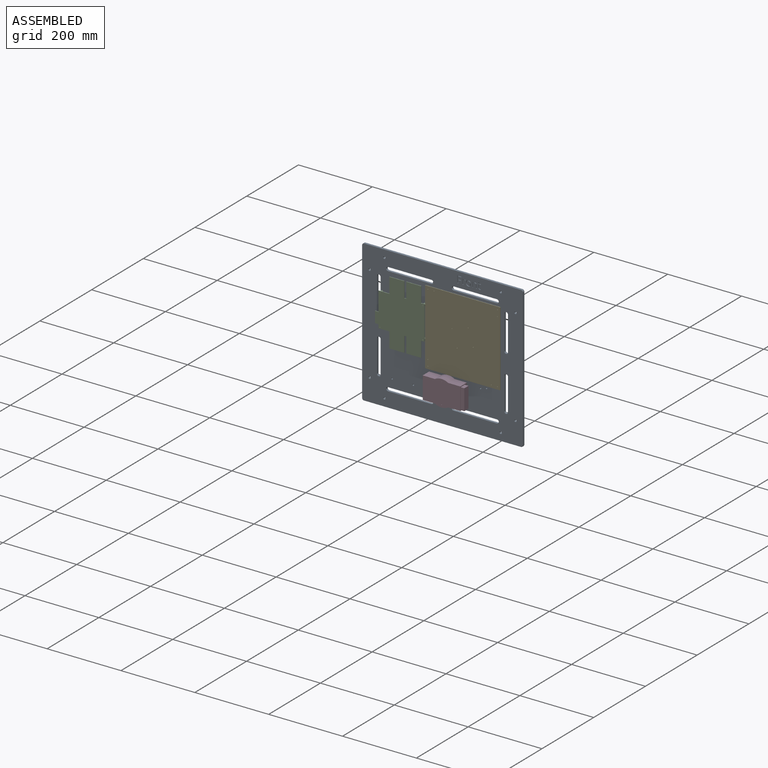
[diagram: assembled view]
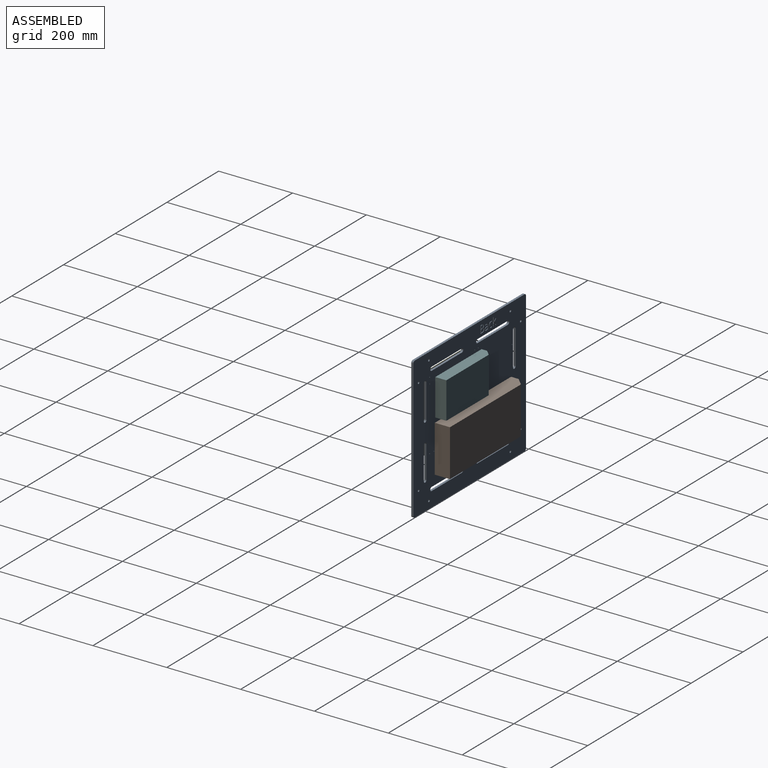
[diagram: assembled view, second angle]
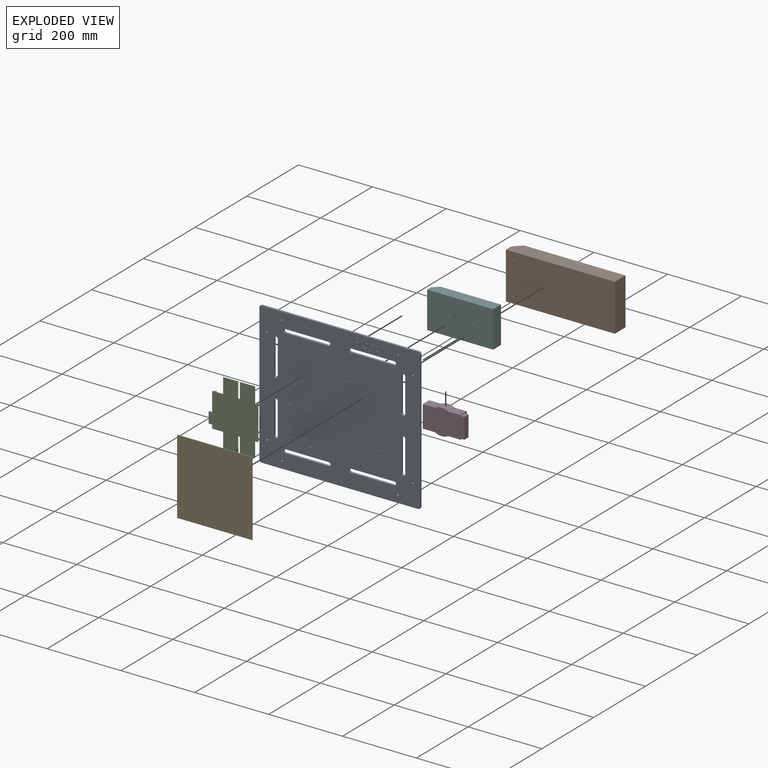
[diagram: exploded view]
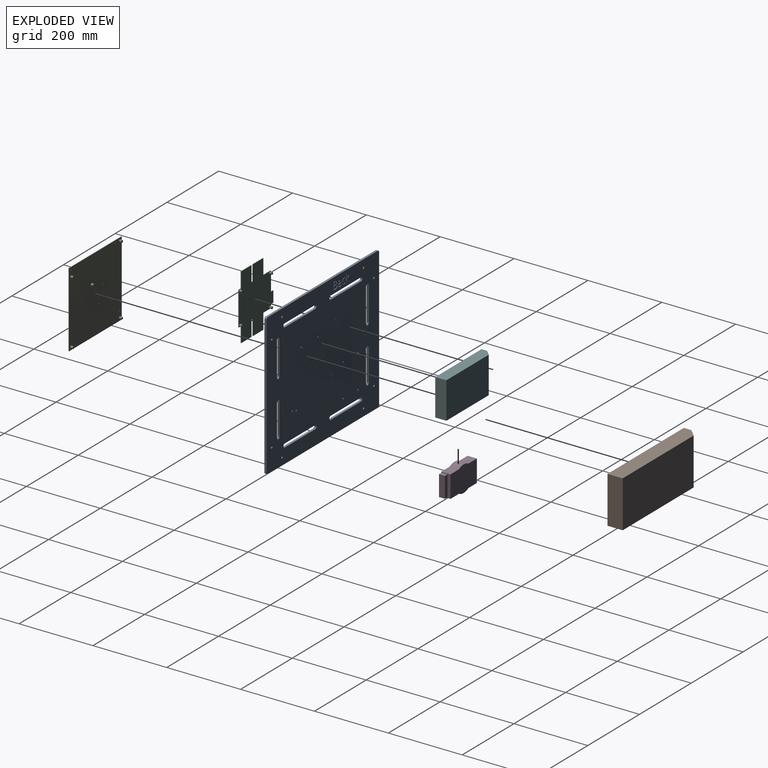
[diagram: exploded view, second angle]
ASSEMBLY  parts=6 mates=5
PART A: 247 faces, bbox 435x6x384.2 mm
  f0: plane 435x384.18mm, normal (0,1,0), area 157257mm2, adj f2,f3,f4,f5,f6,f7,f8,f9
  f1: plane 435x384.18mm, normal (0,-1,0), area 157415.6mm2, adj f2,f3,f4,f5,f6,f7,f8,f9
  f2: plane 374.18x6mm, normal (-1,0,0), area 2245mm2, adj f0,f1,f3,f49
  f3: cylinder r=5mm len=6mm, axis (0,1,0), area 47.1mm2, adj f0,f1,f2,f4
  f4: plane 425x6mm, normal (0,0,-1), area 2550mm2, adj f0,f1,f3,f5
  f5: cylinder r=5mm len=6mm, axis (0,1,0), area 47.1mm2, adj f0,f1,f4,f6
  f6: plane 374.18x6mm, normal (1,0,0), area 2245mm2, adj f0,f1,f5,f7
  f7: cylinder r=5mm len=6mm, axis (0,1,0), area 47.1mm2, adj f0,f1,f6,f8
  f8: plane 425x6mm, normal (0,0,1), area 2550mm2, adj f0,f1,f7,f49
  f9: cylinder r=5mm len=10mm, axis (0,1,0), area 94.2mm2, adj f0,f1,f10,f33
  f10: plane 92.09x6mm, normal (-1,0,0), area 552.5mm2, adj f0,f1,f9,f11
  f11: cylinder r=5mm len=10mm, axis (0,1,0), area 94.2mm2, adj f0,f1,f10,f33
  f12: cylinder r=5mm len=10mm, axis (0,1,0), area 94.2mm2, adj f0,f1,f13,f34
  f13: plane 117.5x6mm, normal (0,0,-1), area 705mm2, adj f0,f1,f12,f14
  f14: cylinder r=5mm len=10mm, axis (0,1,0), area 94.2mm2, adj f0,f1,f13,f34
  f15: cylinder r=5mm len=10mm, axis (0,1,0), area 94.2mm2, adj f0,f1,f16,f35
  f16: plane 117.5x6mm, normal (0,0,-1), area 705mm2, adj f0,f1,f15,f17
  f17: cylinder r=5mm len=10mm, axis (0,1,0), area 94.2mm2, adj f0,f1,f16,f35
  f18: cylinder r=5mm len=10mm, axis (0,1,0), area 94.2mm2, adj f0,f1,f19,f36
  f19: plane 92.09x6mm, normal (-1,0,0), area 552.5mm2, adj f0,f1,f18,f20
  f20: cylinder r=5mm len=10mm, axis (0,1,0), area 94.2mm2, adj f0,f1,f19,f36
  f21: cylinder r=5mm len=10mm, axis (0,1,0), area 94.2mm2, adj f0,f1,f22,f37
  f22: plane 86.97x6mm, normal (-1,0,0), area 521.8mm2, adj f0,f1,f21,f23
  f23: cylinder r=5mm len=10mm, axis (0,1,0), area 94.2mm2, adj f0,f1,f22,f37
  f24: cylinder r=5mm len=10mm, axis (0,1,0), area 94.2mm2, adj f0,f1,f25,f38
  f25: plane 117.5x6mm, normal (0,0,1), area 705mm2, adj f0,f1,f24,f26
  f26: cylinder r=5mm len=10mm, axis (0,1,0), area 94.2mm2, adj f0,f1,f25,f38
  f27: cylinder r=5mm len=10mm, axis (0,1,0), area 94.2mm2, adj f0,f1,f28,f39
  f28: plane 117.5x6mm, normal (0,0,1), area 705mm2, adj f0,f1,f27,f29
  f29: cylinder r=5mm len=10mm, axis (0,1,0), area 94.2mm2, adj f0,f1,f28,f39
  f30: cylinder r=5mm len=10mm, axis (0,1,0), area 94.2mm2, adj f0,f1,f31,f40
  f31: plane 86.97x6mm, normal (-1,0,0), area 521.8mm2, adj f0,f1,f30,f32
  f32: cylinder r=5mm len=10mm, axis (0,1,0), area 94.2mm2, adj f0,f1,f31,f40
  f33: plane 92.09x6mm, normal (1,0,0), area 552.5mm2, adj f0,f1,f9,f11
  f34: plane 117.5x6mm, normal (0,0,1), area 705mm2, adj f0,f1,f12,f14
  f35: plane 117.5x6mm, normal (0,0,1), area 705mm2, adj f0,f1,f15,f17
  f36: plane 92.09x6mm, normal (1,0,0), area 552.5mm2, adj f0,f1,f18,f20
  f37: plane 86.97x6mm, normal (1,0,0), area 521.8mm2, adj f0,f1,f21,f23
  f38: plane 117.5x6mm, normal (0,0,-1), area 705mm2, adj f0,f1,f24,f26
  f39: plane 117.5x6mm, normal (0,0,-1), area 705mm2, adj f0,f1,f27,f29
  f40: plane 86.97x6mm, normal (1,0,0), area 521.8mm2, adj f0,f1,f30,f32
  f41: cylinder r=3mm len=6mm, axis (0,1,0), area 113.1mm2, adj f0,f1
  f42: cylinder r=3mm len=6mm, axis (0,1,0), area 113.1mm2, adj f0,f1
  f43: cylinder r=3mm len=6mm, axis (0,1,0), area 113.1mm2, adj f0,f1
  f44: cylinder r=3mm len=6mm, axis (0,1,0), area 113.1mm2, adj f0,f1
  f45: cylinder r=3mm len=6mm, axis (0,1,0), area 113.1mm2, adj f0,f1
  f46: cylinder r=3mm len=6mm, axis (0,1,0), area 113.1mm2, adj f0,f1
  f47: cylinder r=3mm len=6mm, axis (0,1,0), area 113.1mm2, adj f0,f1
  f48: cylinder r=3mm len=6mm, axis (0,1,0), area 113.1mm2, adj f0,f1
  f49: cylinder r=5mm len=6mm, axis (0,1,0), area 47.1mm2, adj f0,f1,f2,f8
  f50: extruded ~2x1.7mm, area 3.4mm2, adj f1,f51,f62,f63
  f51: extruded ~2.46x2mm, area 5.2mm2, adj f1,f50,f52,f63
  f52: extruded ~2.15x2mm, area 5.8mm2, adj f1,f51,f53,f63
  f53: plane 2x0.1mm, normal (0,0,-1), area 0.2mm2, adj f1,f52,f54,f63
  f54: plane 2.64x2mm, normal (-1,0,-0.09), area 5.3mm2, adj f1,f53,f55,f63
  f55: plane 2x1.78mm, normal (0,0,-1), area 3.6mm2, adj f1,f54,f56,f63
  f56: plane 14.26x2mm, normal (1,0,0), area 28.5mm2, adj f1,f55,f57,f63
  f57: plane 2.16x2mm, normal (0,0,1), area 4.3mm2, adj f1,f56,f58,f63
  f58: plane 7.65x2mm, normal (-1,0,0), area 15.3mm2, adj f1,f57,f59,f63
  f59: extruded ~3.5x2mm, area 7.6mm2, adj f1,f58,f60,f63
  f60: extruded ~2.96x2mm, area 6.8mm2, adj f1,f59,f61,f63
  f61: extruded ~2x1.56mm, area 3.2mm2, adj f1,f60,f62,f63
  f62: plane 2x2mm, normal (-0.99,0,0.15), area 4mm2, adj f1,f50,f61,f63
  f63: plane 14.52x8.21mm, normal (0,-1,0), area 42.4mm2, adj f50,f51,f52,f53,f54,f55,f56,f57
  f64: plane 9.23x2mm, normal (1,0,0), area 18.5mm2, adj f1,f65,f80,f81
  f65: plane 2.16x2mm, normal (0,0,1), area 4.3mm2, adj f1,f64,f66,f81
  f66: plane 9.3x2mm, normal (-1,0,0), area 18.6mm2, adj f1,f65,f67,f81
  f67: extruded ~3.98x2mm, area 8.6mm2, adj f1,f66,f68,f81
  f68: extruded ~3.88x2mm, area 8.3mm2, adj f1,f67,f69,f81
  f69: extruded ~2.67x2mm, area 5.5mm2, adj f1,f68,f70,f81
  f70: extruded ~2x1.86mm, area 5mm2, adj f1,f69,f71,f81
  f71: plane 2x0.1mm, normal (0,0,-1), area 0.2mm2, adj f1,f70,f72,f81
  f72: plane 2x1.95mm, normal (-0.98,0,-0.18), area 4mm2, adj f1,f71,f73,f81
  f73: plane 2x1.76mm, normal (0,0,-1), area 3.5mm2, adj f1,f72,f74,f81
  f74: plane 14.26x2mm, normal (1,0,0), area 28.5mm2, adj f1,f73,f75,f81
  f75: plane 2.16x2mm, normal (0,0,1), area 4.3mm2, adj f1,f74,f76,f81
  f76: plane 7.48x2mm, normal (-1,0,0), area 15mm2, adj f1,f75,f77,f81
  f77: extruded ~3.99x2mm, area 8.4mm2, adj f1,f76,f78,f81
  f78: extruded ~3.28x2mm, area 7.2mm2, adj f1,f77,f79,f81
  f79: extruded ~2.49x2mm, area 5.4mm2, adj f1,f78,f80,f81
  f80: extruded ~2.6x2mm, area 5.6mm2, adj f1,f64,f79,f81
  f81: plane 14.52x11.92mm, normal (0,-1,0), area 73.7mm2, adj f64,f65,f66,f67,f68,f69,f70,f71
  f82: extruded ~2x1.11mm, area 2.2mm2, adj f1,f83,f100,f101
  f83: extruded ~2x1.68mm, area 3.7mm2, adj f1,f82,f84,f101
  f84: extruded ~2x1.98mm, area 4.2mm2, adj f1,f83,f85,f101
  f85: plane 8.39x2mm, normal (-1,0,0), area 16.8mm2, adj f1,f84,f86,f101
  f86: plane 4.14x2mm, normal (0,0,1), area 8.3mm2, adj f1,f85,f87,f101
  f87: plane 2x1.68mm, normal (-1,0,0), area 3.4mm2, adj f1,f86,f88,f101
  f88: plane 4.14x2mm, normal (0,0,-1), area 8.3mm2, adj f1,f87,f89,f101
  f89: plane 3.31x2mm, normal (-1,0,0), area 6.6mm2, adj f1,f88,f90,f101
  f90: plane 2x1.25mm, normal (0,0,-1), area 2.5mm2, adj f1,f89,f91,f101
  f91: plane 3.04x2mm, normal (0.96,0,-0.29), area 6.4mm2, adj f1,f90,f92,f101
  f92: plane 2.04x2mm, normal (0.4,0,-0.92), area 4.5mm2, adj f1,f91,f93,f101
  f93: plane 2x1.04mm, normal (1,0,0), area 2.1mm2, adj f1,f92,f94,f101
  f94: plane 2.04x2mm, normal (0,0,1), area 4.1mm2, adj f1,f93,f95,f101
  f95: plane 8.48x2mm, normal (1,0,0), area 17mm2, adj f1,f94,f96,f101
  f96: extruded ~4.36x4.13mm, area 13.8mm2, adj f1,f95,f97,f101
  f97: extruded ~2x1.23mm, area 2.5mm2, adj f1,f96,f98,f101
  f98: extruded ~2x1.03mm, area 2.1mm2, adj f1,f97,f99,f101
  f99: plane 2x1.65mm, normal (-1,0,0), area 3.3mm2, adj f1,f98,f100,f101
  f100: extruded ~2x0.85mm, area 1.7mm2, adj f1,f82,f99,f101
  f101: plane 17.83x8.44mm, normal (0,-1,0), area 52.6mm2, adj f82,f83,f84,f85,f86,f87,f88,f89
  f102: extruded ~4.17x2mm, area 8.8mm2, adj f103,f118,f119,f131
  f103: extruded ~4.15x2mm, area 8.7mm2, adj f102,f104,f119,f131
  f104: extruded ~3.2x2mm, area 7.2mm2, adj f103,f105,f119,f131
  f105: extruded ~3.25x2mm, area 7.4mm2, adj f104,f106,f119,f131
  f106: extruded ~4.13x2mm, area 8.7mm2, adj f105,f107,f119,f131
  f107: extruded ~4.17x2mm, area 8.8mm2, adj f106,f108,f119,f131
  f108: extruded ~3.22x2mm, area 7.3mm2, adj f107,f118,f119,f131
  f109: extruded ~5.45x2mm, area 11.7mm2, adj f1,f110,f117,f119
  f110: extruded ~5.39x2mm, area 11.6mm2, adj f1,f109,f111,f119
  f111: extruded ~4.75x2mm, area 10.6mm2, adj f1,f110,f112,f119
  f112: extruded ~4.84x2mm, area 10.8mm2, adj f1,f111,f113,f119
  f113: extruded ~5.43x2mm, area 11.7mm2, adj f1,f112,f114,f119
  f114: extruded ~3.93x2mm, area 8.1mm2, adj f1,f113,f115,f119
  f115: extruded ~2.58x2.29mm, area 7mm2, adj f1,f114,f116,f119
  f116: extruded ~3.4x2mm, area 7.1mm2, adj f1,f115,f117,f119
  f117: extruded ~4.85x2mm, area 10.8mm2, adj f1,f109,f116,f119
  f118: extruded ~3.21x2mm, area 7.3mm2, adj f102,f108,f119,f131
  f119: plane 14.78x13.1mm, normal (0,-1,0), area 78.1mm2, adj f102,f103,f104,f105,f106,f107,f108,f109
  f120: plane 2.21x2mm, normal (0,0,1), area 4.4mm2, adj f1,f121,f129,f130
  f121: plane 8.13x2mm, normal (-1,0,0), area 16.3mm2, adj f1,f120,f122,f130
  f122: plane 7.89x2mm, normal (0,0,1), area 15.8mm2, adj f1,f121,f123,f130
  f123: plane 2x1.97mm, normal (-1,0,0), area 3.9mm2, adj f1,f122,f124,f130
  f124: plane 7.89x2mm, normal (0,0,-1), area 15.8mm2, adj f1,f123,f125,f130
  f125: plane 6.96x2mm, normal (-1,0,0), area 13.9mm2, adj f1,f124,f126,f130
  f126: plane 8.39x2mm, normal (0,0,1), area 16.8mm2, adj f1,f125,f127,f130
  f127: plane 2x1.97mm, normal (-1,0,0), area 3.9mm2, adj f1,f126,f128,f130
  f128: plane 10.6x2mm, normal (0,0,-1), area 21.2mm2, adj f1,f127,f129,f130
  f129: plane 19.02x2mm, normal (1,0,0), area 38mm2, adj f1,f120,f128,f130
  f130: plane 19.02x10.6mm, normal (0,-1,0), area 74mm2, adj f120,f121,f122,f123,f124,f125,f126,f127
  f131: plane 11.14x8.63mm, normal (0,-1,0), area 79.7mm2, adj f102,f103,f104,f105,f106,f107,f108,f118
  f132: extruded ~5.22x2.08mm, area 11.6mm2, adj f0,f133,f146,f147
  f133: extruded ~3.92x2mm, area 8.1mm2, adj f0,f132,f134,f147
  f134: plane 2.08x2mm, normal (1,0,0), area 4.2mm2, adj f0,f133,f135,f147
  f135: extruded ~3.98x2mm, area 8.2mm2, adj f0,f134,f136,f147
  f136: extruded ~3.42x2mm, area 7.8mm2, adj f0,f135,f137,f147
  f137: extruded ~4.39x2mm, area 9.2mm2, adj f0,f136,f138,f147
  f138: extruded ~6.03x4.73mm, area 17.5mm2, adj f0,f137,f139,f147
  f139: extruded ~2x1.63mm, area 3.3mm2, adj f0,f138,f140,f147
  f140: extruded ~2x1.7mm, area 3.6mm2, adj f0,f139,f141,f147
  f141: plane 2x1.99mm, normal (0.94,0,0.34), area 4.2mm2, adj f0,f140,f142,f147
  f142: extruded ~2x1.75mm, area 3.7mm2, adj f0,f141,f143,f147
  f143: extruded ~2.24x2mm, area 4.5mm2, adj f0,f142,f144,f147
  f144: extruded ~5.35x2.13mm, area 11.9mm2, adj f0,f143,f145,f147
  f145: extruded ~6.02x2mm, area 12.9mm2, adj f0,f144,f146,f147
  f146: extruded ~5.88x2mm, area 12.6mm2, adj f0,f132,f145,f147
  f147: plane 16.1x11.22mm, normal (0,1,0), area 63.9mm2, adj f132,f133,f134,f135,f136,f137,f138,f139
  f148: extruded ~2.27x2mm, area 5.9mm2, adj f0,f149,f162,f163
  f149: plane 2x0.11mm, normal (0,0,-1), area 0.2mm2, adj f0,f148,f150,f163
  f150: extruded ~2.41x2mm, area 4.8mm2, adj f0,f149,f151,f163
  f151: plane 11.69x2mm, normal (1,0,0), area 23.4mm2, adj f0,f150,f152,f163
  f152: plane 2.33x2mm, normal (0,0,-1), area 4.7mm2, adj f0,f151,f153,f163
  f153: plane 22.04x2mm, normal (-1,0,0), area 44.1mm2, adj f0,f152,f154,f163
  f154: plane 2.33x2mm, normal (0,0,1), area 4.7mm2, adj f0,f153,f155,f163
  f155: plane 5.81x2mm, normal (1,0,0), area 11.6mm2, adj f0,f154,f156,f163
  f156: plane 2x1.77mm, normal (0.65,0,0.76), area 4.7mm2, adj f0,f155,f157,f163
  f157: plane 7.34x5.49mm, normal (-0.8,0,0.6), area 18.3mm2, adj f0,f156,f158,f163
  f158: plane 2.85x2mm, normal (0,0,1), area 5.7mm2, adj f0,f157,f159,f163
  f159: plane 8.91x6.73mm, normal (0.8,0,-0.6), area 22.3mm2, adj f0,f158,f160,f163
  f160: plane 6.61x6.29mm, normal (0.72,0,0.69), area 18.3mm2, adj f0,f159,f161,f163
  f161: plane 2.79x2mm, normal (0,0,-1), area 5.6mm2, adj f0,f160,f162,f163
  f162: plane 5.31x5.01mm, normal (-0.73,0,-0.69), area 14.6mm2, adj f0,f148,f161,f163
  f163: plane 22.04x12.43mm, normal (0,1,0), area 97.3mm2, adj f148,f149,f150,f151,f152,f153,f154,f155
  f164: extruded ~3.45x2mm, area 7.5mm2, adj f165,f190,f191,f219
  f165: extruded ~2.16x2mm, area 4.6mm2, adj f164,f166,f191,f219
  f166: extruded ~2x1.94mm, area 4.3mm2, adj f165,f167,f191,f219
  f167: extruded ~2.4x2mm, area 5.7mm2, adj f166,f168,f191,f219
  f168: extruded ~4.04x2mm, area 8.4mm2, adj f167,f169,f191,f219
  f169: plane 2.35x2mm, normal (0.04,0,1), area 4.7mm2, adj f168,f170,f191,f219
  f170: plane 2x1.4mm, normal (-1,0,0), area 2.8mm2, adj f169,f190,f191,f219
  f171: plane 2.21x2mm, normal (-0.98,0,0.21), area 4.5mm2, adj f0,f172,f189,f191
  f172: plane 2x1.75mm, normal (0,0,1), area 3.5mm2, adj f0,f171,f173,f191
  f173: plane 10.6x2mm, normal (1,0,0), area 21.2mm2, adj f0,f172,f174,f191
  f174: extruded ~3.95x2mm, area 8.6mm2, adj f0,f173,f175,f191
  f175: extruded ~4.11x2mm, area 8.8mm2, adj f0,f174,f176,f191
  f176: extruded ~2.74x2mm, area 5.5mm2, adj f0,f175,f177,f191
  f177: extruded ~2.51x2mm, area 5.4mm2, adj f0,f176,f178,f191
  f178: plane 2x1.8mm, normal (-0.93,0,0.37), area 3.9mm2, adj f0,f177,f179,f191
  f179: extruded ~4.39x2mm, area 9.2mm2, adj f0,f178,f180,f191
  f180: extruded ~2.52x2mm, area 5.5mm2, adj f0,f179,f181,f191
  f181: extruded ~2.7x2mm, area 5.7mm2, adj f0,f180,f182,f191
  f182: plane 2x0.97mm, normal (-1,0,0), area 1.9mm2, adj f0,f181,f183,f191
  f183: plane 2.63x2mm, normal (-0.03,0,-1), area 5.3mm2, adj f0,f182,f184,f191
  f184: extruded ~7.52x4.93mm, area 20.2mm2, adj f0,f183,f185,f191
  f185: extruded ~3.39x2mm, area 7.5mm2, adj f0,f184,f186,f191
  f186: extruded ~3.62x2mm, area 7.8mm2, adj f0,f185,f187,f191
  f187: extruded ~2.89x2mm, area 5.9mm2, adj f0,f186,f188,f191
  f188: extruded ~2.31x2mm, area 6.1mm2, adj f0,f187,f189,f191
  f189: plane 2x0.11mm, normal (0,0,1), area 0.2mm2, adj f0,f171,f188,f191
  f190: extruded ~3.37x2mm, area 7.4mm2, adj f164,f170,f191,f219
  f191: plane 16.07x12.45mm, normal (0,1,0), area 94.4mm2, adj f164,f165,f166,f167,f168,f169,f170,f171
  f192: plane 7.75x2mm, normal (1,0,0), area 15.5mm2, adj f193,f216,f217,f220
  f193: plane 4.13x2mm, normal (0,0,1), area 8.3mm2, adj f192,f194,f217,f220
  f194: extruded ~3.94x2mm, area 8.2mm2, adj f193,f195,f217,f220
  f195: extruded ~2.83x2mm, area 6.5mm2, adj f194,f196,f217,f220
  f196: extruded ~3.04x2mm, area 6.8mm2, adj f195,f197,f217,f220
  f197: extruded ~3.77x2mm, area 7.9mm2, adj f196,f216,f217,f220
  f198: plane 3.97x2mm, normal (0,0,-1), area 7.9mm2, adj f199,f214,f217,f218
  f199: plane 6.78x2mm, normal (1,0,0), area 13.6mm2, adj f198,f200,f217,f218
  f200: plane 3.55x2mm, normal (0,0,1), area 7.1mm2, adj f199,f201,f217,f218
  f201: extruded ~3.97x2mm, area 8.2mm2, adj f200,f202,f217,f218
  f202: extruded ~2.52x2mm, area 5.9mm2, adj f201,f203,f217,f218
  f203: extruded ~2.7x2mm, area 6.1mm2, adj f202,f214,f217,f218
  f204: plane 5.85x2mm, normal (0,0,-1), area 11.7mm2, adj f0,f205,f215,f217
  f205: plane 20.71x2mm, normal (-1,0,0), area 41.4mm2, adj f0,f204,f206,f217
  f206: plane 7.23x2mm, normal (0,0,1), area 14.5mm2, adj f0,f205,f207,f217
  f207: extruded ~5.25x2mm, area 11.2mm2, adj f0,f206,f208,f217
  f208: extruded ~4.33x2mm, area 9.8mm2, adj f0,f207,f209,f217
  f209: extruded ~4.96x4.72mm, area 15.2mm2, adj f0,f208,f210,f217
  f210: plane 2x0.14mm, normal (1,0,0), area 0.3mm2, adj f0,f209,f211,f217
  f211: extruded ~3x2mm, area 6.9mm2, adj f0,f210,f212,f217
  f212: extruded ~3.04x2mm, area 6.6mm2, adj f0,f211,f213,f217
  f213: extruded ~3.89x2mm, area 9mm2, adj f0,f212,f215,f217
  f214: extruded ~3.67x2mm, area 7.6mm2, adj f198,f203,f217,f218
  f215: extruded ~5.96x2mm, area 12.3mm2, adj f0,f204,f213,f217
  f216: plane 4.32x2mm, normal (0,0,-1), area 8.6mm2, adj f192,f197,f217,f220
  f217: plane 20.71x14.35mm, normal (0,1,0), area 146.3mm2, adj f192,f193,f194,f195,f196,f197,f198,f199
  f218: plane 8.76x6.78mm, normal (0,1,0), area 54.3mm2, adj f198,f199,f200,f201,f202,f203,f214
  f219: plane 7.63x5.97mm, normal (0,1,0), area 36.8mm2, adj f164,f165,f166,f167,f168,f169,f170,f190
  f220: plane 9.37x7.75mm, normal (0,1,0), area 66.1mm2, adj f192,f193,f194,f195,f196,f197,f216
  f221: cylinder r=0.9mm len=6mm, axis (0,-1,0), area 33.9mm2, adj f0,f1
  f222: cylinder r=0.9mm len=6mm, axis (0,-1,0), area 33.9mm2, adj f0,f1
  f223: cylinder r=0.9mm len=6mm, axis (0,-1,0), area 33.9mm2, adj f0,f1
  f224: cylinder r=0.9mm len=6mm, axis (0,-1,0), area 33.9mm2, adj f0,f1
  f225: cylinder r=0.9mm len=6mm, axis (0,-1,0), area 33.9mm2, adj f0,f1
  f226: cylinder r=0.9mm len=6mm, axis (0,-1,0), area 33.9mm2, adj f0,f1
  f227: cylinder r=0.9mm len=6mm, axis (0,-1,0), area 33.9mm2, adj f0,f1
  f228: cylinder r=0.9mm len=6mm, axis (0,-1,0), area 33.9mm2, adj f0,f1
  f229: cylinder r=0.9mm len=6mm, axis (0,-1,0), area 33.9mm2, adj f0,f1
  f230: cylinder r=0.9mm len=6mm, axis (0,-1,0), area 33.9mm2, adj f0,f1
  f231: cylinder r=0.9mm len=6mm, axis (0,-1,0), area 33.9mm2, adj f0,f1
  f232: cylinder r=0.9mm len=6mm, axis (0,-1,0), area 33.9mm2, adj f0,f1
  f233: cylinder r=0.9mm len=6mm, axis (0,-1,0), area 33.9mm2, adj f0,f1
  f234: cylinder r=0.9mm len=6mm, axis (0,-1,0), area 33.9mm2, adj f0,f1
  f235: cylinder r=0.9mm len=6mm, axis (0,-1,0), area 33.9mm2, adj f0,f1
  f236: cylinder r=0.9mm len=6mm, axis (0,-1,0), area 33.9mm2, adj f0,f1
  f237: cylinder r=0.5mm len=6mm, axis (0,-1,0), area 18.8mm2, adj f0,f1
  f238: cylinder r=0.5mm len=6mm, axis (0,-1,0), area 18.8mm2, adj f0,f1
  f239: cylinder r=2mm len=6mm, axis (0,-1,0), area 75.4mm2, adj f0,f1
  f240: cylinder r=2mm len=6mm, axis (0,-1,0), area 75.4mm2, adj f0,f1
  f241: cylinder r=2mm len=6mm, axis (0,-1,0), area 75.4mm2, adj f0,f1
  f242: cylinder r=2mm len=6mm, axis (0,-1,0), area 75.4mm2, adj f0,f1
  f243: cylinder r=2mm len=6mm, axis (0,-1,0), area 75.4mm2, adj f0,f1
  f244: cylinder r=2mm len=6mm, axis (0,-1,0), area 75.4mm2, adj f0,f1
  f245: cylinder r=2mm len=6mm, axis (0,-1,0), area 75.4mm2, adj f0,f1
  f246: cylinder r=2mm len=6mm, axis (0,-1,0), area 75.4mm2, adj f0,f1
PART B: 13 faces, bbox 295x127x41 mm
  f0: plane 274.5x127mm, normal (0,0,1), area 34861.5mm2, adj f1,f3,f4,f6
  f1: plane 295x41mm, normal (0,1,0), area 11884.9mm2, adj f0,f2,f4,f5,f6
  f2: plane 127x20.5mm, normal (-1,0,0), area 2603.5mm2, adj f1,f3,f5,f6
  f3: plane 295x41mm, normal (0,-1,0), area 11884.9mm2, adj f0,f2,f4,f5,f6
  f4: plane 127x41mm, normal (1,0,0), area 5207mm2, adj f0,f1,f3,f5
  f5: plane 295x127mm, normal (0,0,-1), area 37427.3mm2, adj f1,f2,f3,f4,f7,f9,f11
  f6: plane 127x20.5mm, normal (-0.71,0,0.71), area 3681.9mm2, adj f0,f1,f2,f3
  f7: cylinder r=2mm len=4mm, axis (0,0,-1), area 50.3mm2, adj f5,f8
  f8: plane 4x4mm, normal (0,0,-1), area 12.6mm2, adj f7
  f9: cylinder r=2mm len=4mm, axis (0,0,-1), area 50.3mm2, adj f5,f10
  f10: plane 4x4mm, normal (0,0,-1), area 12.6mm2, adj f9
  f11: cylinder r=2mm len=4mm, axis (0,0,-1), area 50.3mm2, adj f5,f12
  f12: plane 4x4mm, normal (0,0,-1), area 12.6mm2, adj f11
PART C: 42 faces, bbox 175.5x133.5x8 mm
  f0: plane 30x1.65mm, normal (0,1,0), area 49.5mm2, adj f1,f26,f28,f29
  f1: plane 9.5x1.65mm, normal (-1,0,0), area 15.7mm2, adj f0,f2,f28,f29
  f2: plane 10x1.65mm, normal (0,1,0), area 16.5mm2, adj f1,f3,f28,f29
  f3: plane 29.5x1.65mm, normal (-1,0,0), area 48.7mm2, adj f2,f4,f28,f29
  f4: plane 41.75x1.65mm, normal (0,1,0), area 68.9mm2, adj f3,f5,f28,f29
  f5: plane 40x1.65mm, normal (-1,0,0), area 66mm2, adj f4,f6,f28,f29
  f6: plane 41.75x1.65mm, normal (0,-1,0), area 68.9mm2, adj f5,f7,f28,f29
  f7: plane 5.5x1.65mm, normal (-1,0,0), area 9.1mm2, adj f6,f8,f28,f29
  f8: plane 41.75x1.65mm, normal (0,1,0), area 68.9mm2, adj f7,f9,f28,f29
  f9: plane 40x1.65mm, normal (-1,0,0), area 66mm2, adj f8,f10,f28,f29
  f10: plane 41.75x1.65mm, normal (0,-1,0), area 68.9mm2, adj f9,f11,f28,f29
  f11: plane 9x1.65mm, normal (-1,0,0), area 14.9mm2, adj f10,f12,f28,f29
  f12: plane 92x1.65mm, normal (0,-1,0), area 151.8mm2, adj f11,f13,f28,f29
  f13: plane 9x1.65mm, normal (1,0,0), area 14.9mm2, adj f12,f14,f28,f29
  f14: plane 41.75x1.65mm, normal (0,-1,0), area 68.9mm2, adj f13,f15,f28,f29
  f15: plane 40x1.65mm, normal (1,0,0), area 66mm2, adj f14,f16,f28,f29
  f16: plane 41.75x1.65mm, normal (0,1,0), area 68.9mm2, adj f15,f17,f28,f29
  f17: plane 5.5x1.65mm, normal (1,0,0), area 9.1mm2, adj f16,f18,f28,f29
  f18: plane 41.75x1.65mm, normal (0,-1,0), area 68.9mm2, adj f17,f19,f28,f29
  f19: plane 40x1.65mm, normal (1,0,0), area 66mm2, adj f18,f20,f28,f29
  f20: plane 41.75x1.65mm, normal (0,1,0), area 68.9mm2, adj f19,f21,f28,f29
  f21: plane 29.5x1.65mm, normal (1,0,0), area 48.7mm2, adj f20,f22,f28,f29
  f22: plane 52x1.65mm, normal (0,1,0), area 85.8mm2, adj f21,f26,f28,f29
  f23: cylinder r=1mm len=2mm, axis (0,0,1), area 10.4mm2, adj f29,f32
  f24: cylinder r=1mm len=2mm, axis (0,0,1), area 10.4mm2, adj f29,f38
  f25: cylinder r=1mm len=2mm, axis (0,0,1), area 10.4mm2, adj f29,f41
  f26: plane 9.5x1.65mm, normal (1,0,0), area 15.7mm2, adj f0,f22,f28,f29
  f27: cylinder r=1mm len=2mm, axis (0,0,1), area 10.4mm2, adj f29,f35
  f28: plane 175.5x133.5mm, normal (0,0,-1), area 18246.3mm2, adj f0,f1,f2,f3,f4,f5,f6,f7
  f29: plane 175.5x133.5mm, normal (0,0,1), area 18360.4mm2, adj f0,f1,f2,f3,f4,f5,f6,f7
  f30: plane 6.35x6.35mm, normal (0,0,-1), area 31.7mm2, adj f31
  f31: cylinder r=3.17mm len=6.35mm, axis (0,0,1), area 126.7mm2, adj f28,f30
  f32: plane 2x2mm, normal (0,0,1), area 3.1mm2, adj f23
  f33: plane 6.35x6.35mm, normal (0,0,-1), area 31.7mm2, adj f34
  f34: cylinder r=3.17mm len=6.35mm, axis (0,0,1), area 126.7mm2, adj f28,f33
  f35: plane 2x2mm, normal (0,0,1), area 3.1mm2, adj f27
  f36: plane 6.35x6.35mm, normal (0,0,-1), area 31.7mm2, adj f37
  f37: cylinder r=3.17mm len=6.35mm, axis (0,0,1), area 126.7mm2, adj f28,f36
  f38: plane 2x2mm, normal (0,0,1), area 3.1mm2, adj f24
  f39: plane 6.35x6.35mm, normal (0,0,-1), area 31.7mm2, adj f40
  f40: cylinder r=3.17mm len=6.35mm, axis (0,0,1), area 126.7mm2, adj f28,f39
  f41: plane 2x2mm, normal (0,0,1), area 3.1mm2, adj f25
PART D: 17 faces, bbox 70x112x25 mm
  f0: plane 16x10mm, normal (1,0,0), area 160mm2, adj f2,f5,f15,f16
  f1: plane 16x10mm, normal (-1,0,0), area 160mm2, adj f2,f5,f15,f16
  f2: plane 56x16mm, normal (0,-1,0), area 896mm2, adj f0,f1,f15,f16
  f3: plane 102x70mm, normal (0,0,1), area 6360.5mm2, adj f5,f6,f7,f8,f9,f10,f11,f12
  f4: plane 102x70mm, normal (0,0,-1), area 6360.5mm2, adj f5,f6,f7,f8,f9,f10,f11,f12
  f5: plane 60x25mm, normal (0,-1,0), area 604mm2, adj f0,f1,f3,f4,f6,f12,f15,f16
  f6: plane 32.97x25mm, normal (1,0,0), area 824.3mm2, adj f3,f4,f5,f7
  f7: cylinder r=35mm len=36.06mm, axis (0,0,-1), area 946.9mm2, adj f3,f4,f6,f8
  f8: plane 32.97x25mm, normal (1,0,0), area 824.3mm2, adj f3,f4,f7,f9
  f9: plane 60x25mm, normal (0,1,0), area 1500mm2, adj f3,f4,f8,f10
  f10: plane 32.97x25mm, normal (-1,0,0), area 824.3mm2, adj f3,f4,f9,f11
  f11: cylinder r=35mm len=36.06mm, axis (0,0,-1), area 946.9mm2, adj f3,f4,f10,f12
  f12: plane 32.97x25mm, normal (-1,0,0), area 824.3mm2, adj f3,f4,f5,f11
  f13: cylinder r=0.75mm len=25mm, axis (0,0,-1), area 117.8mm2, adj f3,f4
  f14: cylinder r=0.75mm len=25mm, axis (0,0,-1), area 117.8mm2, adj f3,f4
  f15: plane 56x10mm, normal (0,0,-1), area 560mm2, adj f0,f1,f2,f5
  f16: plane 56x10mm, normal (0,0,1), area 560mm2, adj f0,f1,f2,f5
PART E: 33 faces, bbox 203.3x203.3x8 mm
  f0: plane 203.25x1.65mm, normal (0,1,0), area 335.4mm2, adj f1,f15,f16,f17
  f1: plane 203.25x1.65mm, normal (-1,0,0), area 335.4mm2, adj f0,f2,f16,f17
  f2: plane 203.25x1.65mm, normal (0,-1,0), area 335.4mm2, adj f1,f15,f16,f17
  f3: cylinder r=1mm len=2mm, axis (0,0,1), area 10.4mm2, adj f17,f26
  f4: cylinder r=1mm len=2mm, axis (0,0,1), area 10.4mm2, adj f17,f23
  f5: cylinder r=1mm len=2mm, axis (0,0,1), area 10.4mm2, adj f17,f20
  f6: cylinder r=1mm len=2mm, axis (0,0,1), area 10.4mm2, adj f16,f17
  f7: cylinder r=1mm len=2mm, axis (0,0,1), area 10.4mm2, adj f17,f29
  f8: cylinder r=1mm len=2mm, axis (0,0,1), area 10.4mm2, adj f16,f17
  f9: cylinder r=1mm len=2mm, axis (0,0,1), area 10.4mm2, adj f16,f17
  f10: cylinder r=1mm len=2mm, axis (0,0,1), area 10.4mm2, adj f16,f17
  f11: cylinder r=1mm len=2mm, axis (0,0,1), area 10.4mm2, adj f17,f32
  f12: cylinder r=1mm len=2mm, axis (0,0,1), area 10.4mm2, adj f16,f17
  f13: cylinder r=1mm len=2mm, axis (0,0,1), area 10.4mm2, adj f16,f17
  f14: cylinder r=1mm len=2mm, axis (0,0,1), area 10.4mm2, adj f16,f17
  f15: plane 203.25x1.65mm, normal (1,0,0), area 335.4mm2, adj f0,f2,f16,f17
  f16: plane 203.25x203.25mm, normal (0,0,-1), area 41130.2mm2, adj f0,f1,f2,f6,f8,f9,f10,f12
  f17: plane 203.25x203.25mm, normal (0,0,1), area 41272.9mm2, adj f0,f1,f2,f3,f4,f5,f6,f7
  f18: plane 6.35x6.35mm, normal (0,0,-1), area 31.7mm2, adj f19
  f19: cylinder r=3.17mm len=6.35mm, axis (0,0,1), area 126.7mm2, adj f16,f18
  f20: plane 2x2mm, normal (0,0,1), area 3.1mm2, adj f5
  f21: plane 6.35x6.35mm, normal (0,0,-1), area 31.7mm2, adj f22
  f22: cylinder r=3.17mm len=6.35mm, axis (0,0,1), area 126.7mm2, adj f16,f21
  f23: plane 2x2mm, normal (0,0,1), area 3.1mm2, adj f4
  f24: plane 6.35x6.35mm, normal (0,0,-1), area 31.7mm2, adj f25
  f25: cylinder r=3.17mm len=6.35mm, axis (0,0,1), area 126.7mm2, adj f16,f24
  f26: plane 2x2mm, normal (0,0,1), area 3.1mm2, adj f3
  f27: plane 6.35x6.35mm, normal (0,0,-1), area 31.7mm2, adj f28
  f28: cylinder r=3.17mm len=6.35mm, axis (0,0,1), area 126.7mm2, adj f16,f27
  f29: plane 2x2mm, normal (0,0,1), area 3.1mm2, adj f7
  f30: plane 6.35x6.35mm, normal (0,0,-1), area 31.7mm2, adj f31
  f31: cylinder r=3.17mm len=6.35mm, axis (0,0,1), area 126.7mm2, adj f16,f30
  f32: plane 2x2mm, normal (0,0,1), area 3.1mm2, adj f11
PART F: 11 faces, bbox 179x99x30 mm
  f0: plane 164x99mm, normal (0,0,1), area 16236mm2, adj f1,f3,f4,f10
  f1: plane 179x30mm, normal (0,1,0), area 5257.5mm2, adj f0,f2,f4,f5,f10
  f2: plane 99x15mm, normal (-1,0,0), area 1485mm2, adj f1,f3,f5,f10
  f3: plane 179x30mm, normal (0,-1,0), area 5257.5mm2, adj f0,f2,f4,f5,f10
  f4: plane 99x30mm, normal (1,0,0), area 2970mm2, adj f0,f1,f3,f5
  f5: plane 179x99mm, normal (0,0,-1), area 17695.9mm2, adj f1,f2,f3,f4,f6,f8
  f6: cylinder r=2mm len=6mm, axis (0,0,-1), area 75.4mm2, adj f5,f7
  f7: plane 4x4mm, normal (0,0,-1), area 12.6mm2, adj f6
  f8: cylinder r=2mm len=6mm, axis (0,0,-1), area 75.4mm2, adj f5,f9
  f9: plane 4x4mm, normal (0,0,-1), area 12.6mm2, adj f8
  f10: plane 99x15mm, normal (-0.71,0,0.71), area 2100.1mm2, adj f0,f1,f2,f3
PLACE A t=(-327.27,31.19,43.49)mm
PLACE B rot(axis=(-1,0,0),90deg) t=(-339.69,72.19,-9.76)mm
PLACE C rot(axis=(0.58,-0.58,0.58),120deg) t=(-432.87,17.19,89.33)mm
PLACE D rot(axis=(0.58,-0.58,0.58),120deg) t=(-312.34,25.19,-60.43)mm
PLACE E rot(axis=(0,-0.71,0.71),180deg) t=(-267.15,17.19,80.78)mm
PLACE F rot(axis=(-1,0,0),90deg) t=(-283.53,61.19,115.48)mm
MATE planar A.f1 <-> E.f3  axis (0,-1,0) through (-327.45,25.19,42.99)mm
MATE planar B.f5 <-> A.f0  axis (0,-1,0) through (-339.64,31.19,-9.76)mm
MATE planar C.f24 <-> A.f1  axis (0,1,0) through (-490.87,25.19,131.33)mm
MATE planar A.f0 <-> F.f5  axis (0,1,0) through (-327.04,31.19,42.82)mm
MATE planar D.f7 <-> A.f1  axis (0,1,0) through (-312.34,25.19,-60.43)mm
